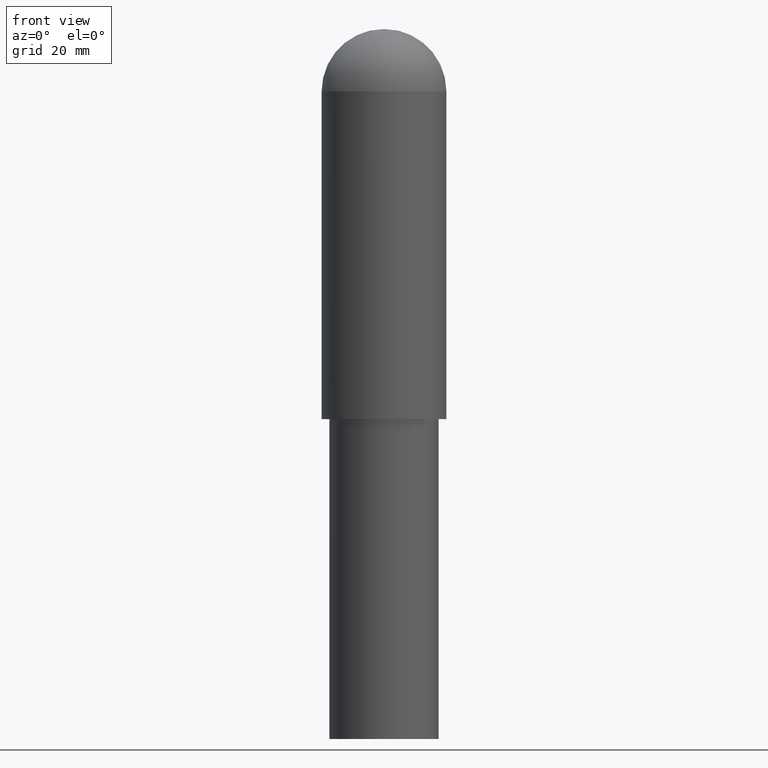
[diagram: clean part render]
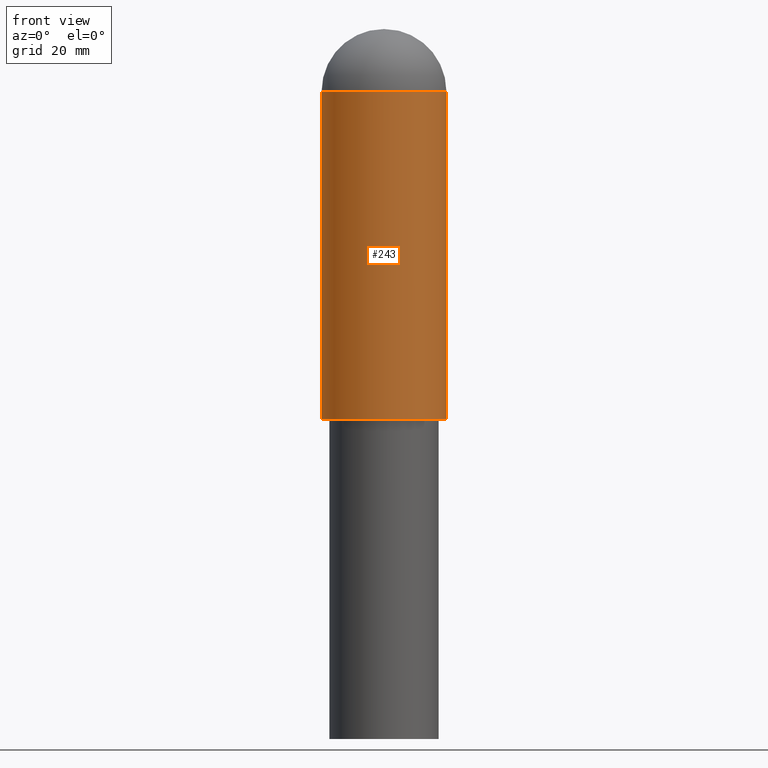
[diagram: same view with one face highlighted and labeled with its STEP entity id]
A machine part, front view. The second image highlights one B-rep face of the part: STEP entity #243.
In plain terms, the highlighted cylindrical surface (partial cylindrical patch) has radius 16 mm, axis along (0, 0, 1).
Its self-contained STEP definition (entity closure, byte-faithful):
#202=CARTESIAN_POINT('',(4.283053939901925,-1.613904443833869,82.000000000000014));
#203=DIRECTION('',(0.0,0.0,1.0));
#204=DIRECTION('',(-1.0,0.0,0.0));
#205=AXIS2_PLACEMENT_3D('',#202,#203,#204);
#206=CYLINDRICAL_SURFACE('',#205,16.0);
#207=CARTESIAN_POINT('',(-11.716946060098074,-1.613904443833867,82.0));
#208=VERTEX_POINT('',#207);
#209=CARTESIAN_POINT('',(-11.716946060098074,-1.613904443833867,166.0));
#210=VERTEX_POINT('',#209);
#211=CARTESIAN_POINT('',(-11.716946060098074,-1.613904443833867,82.0));
#212=DIRECTION('',(0.0,0.0,1.0));
#213=VECTOR('',#212,84.0);
#214=LINE('',#211,#213);
#215=EDGE_CURVE('',#208,#210,#214,.T.);
#216=ORIENTED_EDGE('',*,*,#215,.F.);
#217=CARTESIAN_POINT('',(20.283053939901926,-1.613904443833867,82.000000000000014));
#218=VERTEX_POINT('',#217);
#219=CARTESIAN_POINT('',(4.283053939901925,-1.613904443833869,82.000000000000014));
#220=DIRECTION('',(0.0,0.0,-1.0));
#221=DIRECTION('',(-1.0,0.0,0.0));
#222=AXIS2_PLACEMENT_3D('',#219,#220,#221);
#223=CIRCLE('',#222,16.0);
#224=EDGE_CURVE('',#218,#208,#223,.T.);
#225=ORIENTED_EDGE('',*,*,#224,.F.);
#226=CARTESIAN_POINT('',(20.283053939901926,-1.613904443833867,166.0));
#227=VERTEX_POINT('',#226);
#228=CARTESIAN_POINT('',(20.283053939901926,-1.613904443833867,166.0));
#229=DIRECTION('',(0.0,0.0,-1.0));
#230=VECTOR('',#229,83.999999999999986);
#231=LINE('',#228,#230);
#232=EDGE_CURVE('',#227,#218,#231,.T.);
#233=ORIENTED_EDGE('',*,*,#232,.F.);
#234=CARTESIAN_POINT('',(4.283053939901925,-1.613904443833869,166.0));
#235=DIRECTION('',(0.0,0.0,1.0));
#236=DIRECTION('',(-1.0,0.0,0.0));
#237=AXIS2_PLACEMENT_3D('',#234,#235,#236);
#238=CIRCLE('',#237,16.0);
#239=EDGE_CURVE('',#210,#227,#238,.T.);
#240=ORIENTED_EDGE('',*,*,#239,.F.);
#241=EDGE_LOOP('',(#216,#225,#233,#240));
#242=FACE_OUTER_BOUND('',#241,.T.);
#243=ADVANCED_FACE('',(#242),#206,.T.);